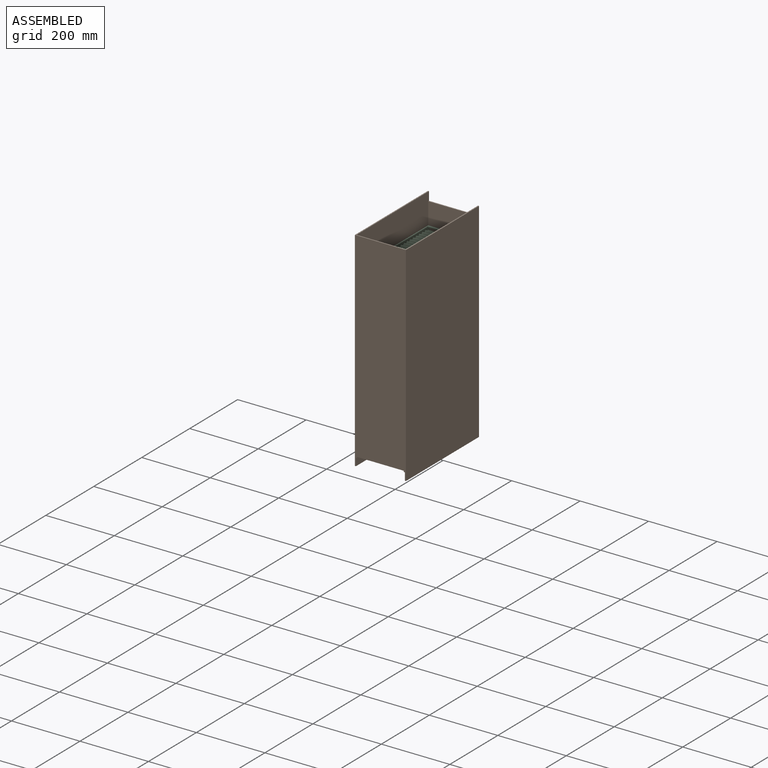
[diagram: assembled view]
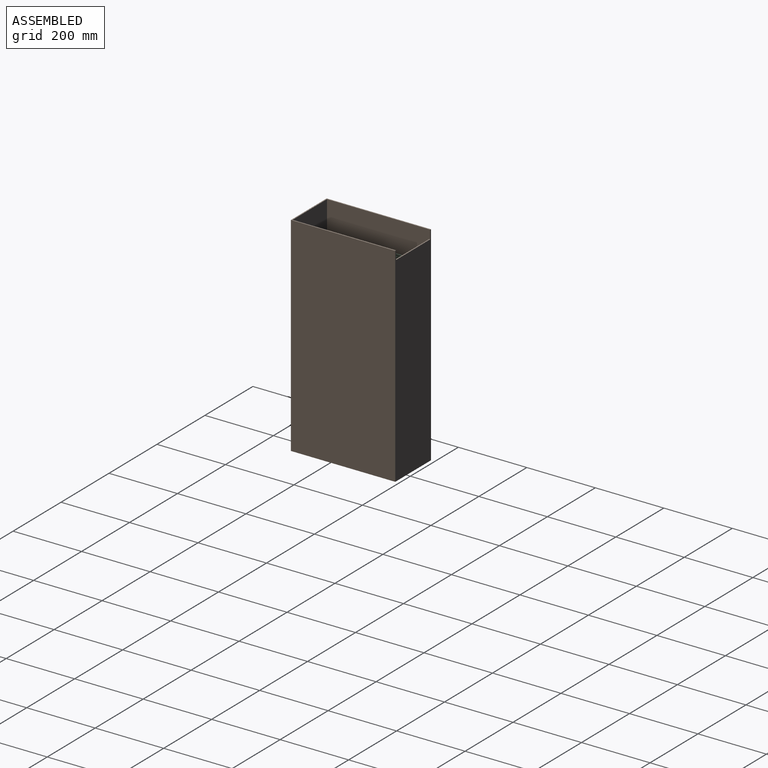
[diagram: assembled view, second angle]
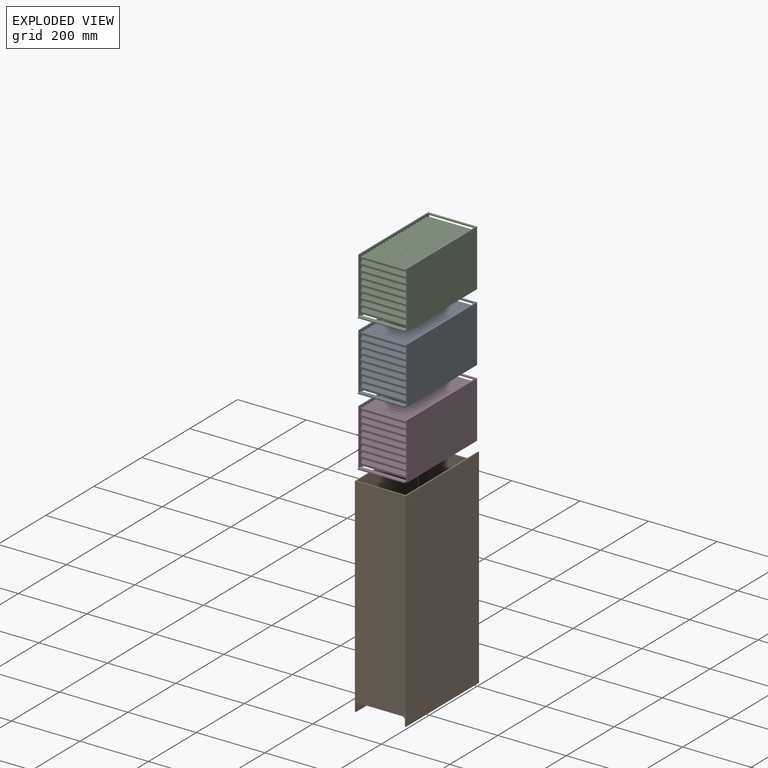
[diagram: exploded view]
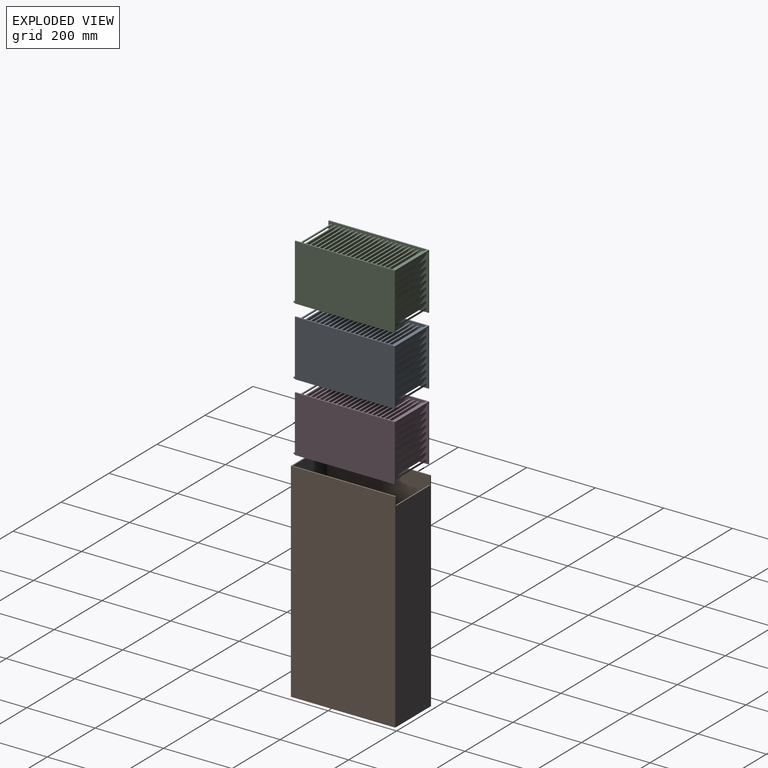
[diagram: exploded view, second angle]
ASSEMBLY  parts=4 mates=3
PART A: 140 faces, bbox 142.9x298.5x165.1 mm
  f0: plane 292.1x165.1mm, normal (-1,0,0), area 35190.1mm2, adj f2,f3,f4,f5,f6,f7,f8,f9
  f1: plane 292.1x165.1mm, normal (1,0,0), area 35190.1mm2, adj f2,f3,f4,f5,f6,f7,f8,f9
  f2: plane 136.53x5.54mm, normal (0,-1,0), area 755.7mm2, adj f0,f1,f3,f5
  f3: plane 136.53x0.31mm, normal (0,-0.82,-0.57), area 50.9mm2, adj f0,f1,f2,f4
  f4: plane 136.53x3.88mm, normal (0,0,-1), area 529.2mm2, adj f0,f1,f3,f5
  f5: plane 136.53x5.84mm, normal (0,0.82,0.57), area 973.5mm2, adj f0,f1,f2,f4
  f6: plane 136.53x18.44mm, normal (0,-0.82,-0.57), area 3073.8mm2, adj f0,f1,f7,f9
  f7: plane 136.53x3.88mm, normal (0,0,-1), area 529.2mm2, adj f0,f1,f6,f8
  f8: plane 136.53x23.98mm, normal (0,0.82,0.57), area 3996.4mm2, adj f0,f1,f7,f9
  f9: plane 136.53x5.54mm, normal (0,-1,0), area 755.7mm2, adj f0,f1,f6,f8
  f10: plane 136.53x36.58mm, normal (0,-0.82,-0.57), area 6096.7mm2, adj f0,f1,f11,f13
  f11: plane 136.53x3.88mm, normal (0,0,-1), area 529.2mm2, adj f0,f1,f10,f12
  f12: plane 136.53x42.12mm, normal (0,0.82,0.57), area 7019.3mm2, adj f0,f1,f11,f13
  f13: plane 136.53x5.54mm, normal (0,-1,0), area 755.7mm2, adj f0,f1,f10,f12
  f14: plane 136.53x54.72mm, normal (0,-0.82,-0.57), area 9119.6mm2, adj f0,f1,f15,f17
  f15: plane 136.53x3.88mm, normal (0,0,-1), area 529.2mm2, adj f0,f1,f14,f16
  f16: plane 136.53x60.25mm, normal (0,0.82,0.57), area 10042.2mm2, adj f0,f1,f15,f17
  f17: plane 136.53x5.54mm, normal (0,-1,0), area 755.7mm2, adj f0,f1,f14,f16
  f18: plane 136.53x72.86mm, normal (0,-0.82,-0.57), area 12142.6mm2, adj f0,f1,f19,f21
  f19: plane 136.53x3.88mm, normal (0,0,-1), area 529.2mm2, adj f0,f1,f18,f20
  f20: plane 136.53x78.39mm, normal (0,0.82,0.57), area 13065.1mm2, adj f0,f1,f19,f21
  f21: plane 136.53x5.54mm, normal (0,-1,0), area 755.7mm2, adj f0,f1,f18,f20
  f22: plane 136.53x90.99mm, normal (0,-0.82,-0.57), area 15165.5mm2, adj f0,f1,f23,f25
  f23: plane 136.53x3.88mm, normal (0,0,-1), area 529.2mm2, adj f0,f1,f22,f24
  f24: plane 136.53x96.53mm, normal (0,0.82,0.57), area 16088mm2, adj f0,f1,f23,f25
  f25: plane 136.53x5.54mm, normal (0,-1,0), area 755.7mm2, adj f0,f1,f22,f24
  f26: plane 136.53x109.13mm, normal (0,-0.82,-0.57), area 18188.4mm2, adj f0,f1,f27,f29
  f27: plane 136.53x3.88mm, normal (0,0,-1), area 529.2mm2, adj f0,f1,f26,f28
  f28: plane 136.53x114.67mm, normal (0,0.82,0.57), area 19110.9mm2, adj f0,f1,f27,f29
  f29: plane 136.53x5.54mm, normal (0,-1,0), area 755.7mm2, adj f0,f1,f26,f28
  f30: plane 136.53x127.27mm, normal (0,-0.82,-0.57), area 21211.3mm2, adj f0,f1,f31,f33
  f31: plane 136.53x3.88mm, normal (0,0,-1), area 529.2mm2, adj f0,f1,f30,f32
  f32: plane 136.53x132.8mm, normal (0,0.82,0.57), area 22133.8mm2, adj f0,f1,f31,f33
  f33: plane 136.53x5.54mm, normal (0,-1,0), area 755.7mm2, adj f0,f1,f30,f32
  f34: plane 145.41x136.53mm, normal (0,-0.82,-0.57), area 24234.2mm2, adj f0,f1,f35,f37
  f35: plane 136.53x3.88mm, normal (0,0,-1), area 529.2mm2, adj f0,f1,f34,f36
  f36: plane 150.94x136.53mm, normal (0,0.82,0.57), area 25156.7mm2, adj f0,f1,f35,f37
  f37: plane 136.53x5.54mm, normal (0,-1,0), area 755.7mm2, adj f0,f1,f34,f36
  f38: plane 152.4x136.53mm, normal (0,0.82,0.57), area 25399.9mm2, adj f0,f1,f39,f41
  f39: plane 136.53x3.88mm, normal (0,0,1), area 529.2mm2, adj f0,f1,f38,f40
  f40: plane 152.4x136.53mm, normal (0,-0.82,-0.57), area 25399.9mm2, adj f0,f1,f39,f41
  f41: plane 136.53x3.88mm, normal (0,0,-1), area 529.2mm2, adj f0,f1,f38,f40
  f42: plane 152.4x136.53mm, normal (0,0.82,0.57), area 25399.9mm2, adj f0,f1,f43,f45
  f43: plane 136.53x3.88mm, normal (0,0,1), area 529.2mm2, adj f0,f1,f42,f44
  f44: plane 152.4x136.53mm, normal (0,-0.82,-0.57), area 25399.9mm2, adj f0,f1,f43,f45
  f45: plane 136.53x3.88mm, normal (0,0,-1), area 529.2mm2, adj f0,f1,f42,f44
  f46: plane 152.4x136.53mm, normal (0,0.82,0.57), area 25399.9mm2, adj f0,f1,f47,f49
  f47: plane 136.53x3.88mm, normal (0,0,1), area 529.2mm2, adj f0,f1,f46,f48
  f48: plane 152.4x136.53mm, normal (0,-0.82,-0.57), area 25399.9mm2, adj f0,f1,f47,f49
  f49: plane 136.53x3.88mm, normal (0,0,-1), area 529.2mm2, adj f0,f1,f46,f48
  f50: plane 152.4x136.53mm, normal (0,0.82,0.57), area 25399.9mm2, adj f0,f1,f51,f53
  f51: plane 136.53x3.88mm, normal (0,0,1), area 529.2mm2, adj f0,f1,f50,f52
  f52: plane 152.4x136.53mm, normal (0,-0.82,-0.57), area 25399.9mm2, adj f0,f1,f51,f53
  f53: plane 136.53x3.88mm, normal (0,0,-1), area 529.2mm2, adj f0,f1,f50,f52
  f54: plane 152.4x136.53mm, normal (0,0.82,0.57), area 25399.9mm2, adj f0,f1,f55,f57
  f55: plane 136.53x3.88mm, normal (0,0,1), area 529.2mm2, adj f0,f1,f54,f56
  f56: plane 152.4x136.53mm, normal (0,-0.82,-0.57), area 25399.9mm2, adj f0,f1,f55,f57
  f57: plane 136.53x3.88mm, normal (0,0,-1), area 529.2mm2, adj f0,f1,f54,f56
  f58: plane 152.4x136.53mm, normal (0,0.82,0.57), area 25399.9mm2, adj f0,f1,f59,f61
  f59: plane 136.53x3.88mm, normal (0,0,1), area 529.2mm2, adj f0,f1,f58,f60
  f60: plane 152.4x136.53mm, normal (0,-0.82,-0.57), area 25399.9mm2, adj f0,f1,f59,f61
  f61: plane 136.53x3.88mm, normal (0,0,-1), area 529.2mm2, adj f0,f1,f58,f60
  f62: plane 152.4x136.53mm, normal (0,0.82,0.57), area 25399.9mm2, adj f0,f1,f63,f65
  f63: plane 136.53x3.88mm, normal (0,0,1), area 529.2mm2, adj f0,f1,f62,f64
  f64: plane 152.4x136.53mm, normal (0,-0.82,-0.57), area 25399.9mm2, adj f0,f1,f63,f65
  f65: plane 136.53x3.88mm, normal (0,0,-1), area 529.2mm2, adj f0,f1,f62,f64
  f66: plane 152.4x136.53mm, normal (0,0.82,0.57), area 25399.9mm2, adj f0,f1,f67,f69
  f67: plane 136.53x3.88mm, normal (0,0,1), area 529.2mm2, adj f0,f1,f66,f68
  f68: plane 152.4x136.53mm, normal (0,-0.82,-0.57), area 25399.9mm2, adj f0,f1,f67,f69
  f69: plane 136.53x3.88mm, normal (0,0,-1), area 529.2mm2, adj f0,f1,f66,f68
  f70: plane 152.4x136.53mm, normal (0,0.82,0.57), area 25399.9mm2, adj f0,f1,f71,f73
  f71: plane 136.53x3.88mm, normal (0,0,1), area 529.2mm2, adj f0,f1,f70,f72
  f72: plane 152.4x136.53mm, normal (0,-0.82,-0.57), area 25399.9mm2, adj f0,f1,f71,f73
  f73: plane 136.53x3.88mm, normal (0,0,-1), area 529.2mm2, adj f0,f1,f70,f72
  f74: plane 152.4x136.53mm, normal (0,0.82,0.57), area 25399.9mm2, adj f0,f1,f75,f77
  f75: plane 136.53x3.88mm, normal (0,0,1), area 529.2mm2, adj f0,f1,f74,f76
  f76: plane 152.4x136.53mm, normal (0,-0.82,-0.57), area 25399.9mm2, adj f0,f1,f75,f77
  f77: plane 136.53x3.88mm, normal (0,0,-1), area 529.2mm2, adj f0,f1,f74,f76
  f78: plane 152.4x136.53mm, normal (0,0.82,0.57), area 25399.9mm2, adj f0,f1,f79,f81
  f79: plane 136.53x3.88mm, normal (0,0,1), area 529.2mm2, adj f0,f1,f78,f80
  f80: plane 152.4x136.53mm, normal (0,-0.82,-0.57), area 25399.9mm2, adj f0,f1,f79,f81
  f81: plane 136.53x3.88mm, normal (0,0,-1), area 529.2mm2, adj f0,f1,f78,f80
  f82: plane 152.4x136.53mm, normal (0,0.82,0.57), area 25399.9mm2, adj f0,f1,f83,f85
  f83: plane 136.53x3.88mm, normal (0,0,1), area 529.2mm2, adj f0,f1,f82,f84
  f84: plane 152.4x136.53mm, normal (0,-0.82,-0.57), area 25399.9mm2, adj f0,f1,f83,f85
  f85: plane 136.53x3.88mm, normal (0,0,-1), area 529.2mm2, adj f0,f1,f82,f84
  f86: plane 152.4x136.53mm, normal (0,0.82,0.57), area 25399.9mm2, adj f0,f1,f87,f89
  f87: plane 136.53x3.88mm, normal (0,0,1), area 529.2mm2, adj f0,f1,f86,f88
  f88: plane 152.4x136.53mm, normal (0,-0.82,-0.57), area 25399.9mm2, adj f0,f1,f87,f89
  f89: plane 136.53x3.88mm, normal (0,0,-1), area 529.2mm2, adj f0,f1,f86,f88
  f90: plane 136.53x3.88mm, normal (0,0,1), area 529.2mm2, adj f0,f1,f91,f93
  f91: plane 152.09x136.53mm, normal (0,-0.82,-0.57), area 25349mm2, adj f0,f1,f90,f92
  f92: plane 136.53x5.54mm, normal (0,1,0), area 755.7mm2, adj f0,f1,f91,f93
  f93: plane 146.56x136.53mm, normal (0,0.82,0.57), area 24426.4mm2, adj f0,f1,f90,f92
  f94: plane 136.53x128.42mm, normal (0,0.82,0.57), area 21403.5mm2, adj f0,f1,f95,f97
  f95: plane 136.53x3.88mm, normal (0,0,1), area 529.2mm2, adj f0,f1,f94,f96
  f96: plane 136.53x133.96mm, normal (0,-0.82,-0.57), area 22326.1mm2, adj f0,f1,f95,f97
  f97: plane 136.53x5.54mm, normal (0,1,0), area 755.7mm2, adj f0,f1,f94,f96
  f98: plane 136.53x110.28mm, normal (0,0.82,0.57), area 18380.6mm2, adj f0,f1,f99,f101
  f99: plane 136.53x3.88mm, normal (0,0,1), area 529.2mm2, adj f0,f1,f98,f100
  f100: plane 136.53x115.82mm, normal (0,-0.82,-0.57), area 19303.2mm2, adj f0,f1,f99,f101
  f101: plane 136.53x5.54mm, normal (0,1,0), area 755.7mm2, adj f0,f1,f98,f100
  f102: plane 136.53x92.15mm, normal (0,0.82,0.57), area 15357.7mm2, adj f0,f1,f103,f105
  f103: plane 136.53x3.88mm, normal (0,0,1), area 529.2mm2, adj f0,f1,f102,f104
  f104: plane 136.53x97.68mm, normal (0,-0.82,-0.57), area 16280.3mm2, adj f0,f1,f103,f105
  f105: plane 136.53x5.54mm, normal (0,1,0), area 755.7mm2, adj f0,f1,f102,f104
  f106: plane 136.53x74.01mm, normal (0,0.82,0.57), area 12334.8mm2, adj f0,f1,f107,f109
  f107: plane 136.53x3.88mm, normal (0,0,1), area 529.2mm2, adj f0,f1,f106,f108
  f108: plane 136.53x79.54mm, normal (0,-0.82,-0.57), area 13257.4mm2, adj f0,f1,f107,f109
  f109: plane 136.53x5.54mm, normal (0,1,0), area 755.7mm2, adj f0,f1,f106,f108
  f110: plane 136.53x55.87mm, normal (0,0.82,0.57), area 9311.9mm2, adj f0,f1,f111,f113
  f111: plane 136.53x3.88mm, normal (0,0,1), area 529.2mm2, adj f0,f1,f110,f112
  f112: plane 136.53x61.41mm, normal (0,-0.82,-0.57), area 10234.5mm2, adj f0,f1,f111,f113
  f113: plane 136.53x5.54mm, normal (0,1,0), area 755.7mm2, adj f0,f1,f110,f112
  f114: plane 136.53x37.73mm, normal (0,0.82,0.57), area 6289mm2, adj f0,f1,f115,f117
  f115: plane 136.53x3.88mm, normal (0,0,1), area 529.2mm2, adj f0,f1,f114,f116
  f116: plane 136.53x43.27mm, normal (0,-0.82,-0.57), area 7211.6mm2, adj f0,f1,f115,f117
  f117: plane 136.53x5.54mm, normal (0,1,0), area 755.7mm2, adj f0,f1,f114,f116
  f118: plane 136.53x19.6mm, normal (0,0.82,0.57), area 3266.1mm2, adj f0,f1,f119,f121
  f119: plane 136.53x3.88mm, normal (0,0,1), area 529.2mm2, adj f0,f1,f118,f120
  f120: plane 136.53x25.13mm, normal (0,-0.82,-0.57), area 4188.7mm2, adj f0,f1,f119,f121
  f121: plane 136.53x5.54mm, normal (0,1,0), area 755.7mm2, adj f0,f1,f118,f120
  f122: plane 136.53x1.46mm, normal (0,0.82,0.57), area 243.2mm2, adj f0,f1,f123,f125
  f123: plane 136.53x3.88mm, normal (0,0,1), area 529.2mm2, adj f0,f1,f122,f124
  f124: plane 136.53x6.99mm, normal (0,-0.82,-0.57), area 1165.8mm2, adj f0,f1,f123,f125
  f125: plane 136.53x5.54mm, normal (0,1,0), area 755.7mm2, adj f0,f1,f122,f124
  f126: plane 292.1x142.88mm, normal (0,0,1), area 2721.8mm2, adj f0,f1,f127,f129,f130,f131,f132,f139
  f127: plane 165.1x142.88mm, normal (0,-1,0), area 1481.9mm2, adj f0,f1,f126,f128,f130,f132,f138
  f128: plane 298.45x142.88mm, normal (0,0,-1), area 3588.7mm2, adj f0,f1,f127,f129,f130,f131,f132,f133
  f129: plane 165.1x3.18mm, normal (0,1,0), area 524.2mm2, adj f0,f126,f128,f130,f134
  f130: plane 292.1x165.1mm, normal (1,0,0), area 48225.7mm2, adj f126,f127,f128,f129
  f131: plane 165.1x3.18mm, normal (0,1,0), area 524.2mm2, adj f1,f126,f128,f132,f133
  f132: plane 292.1x165.1mm, normal (-1,0,0), area 48225.7mm2, adj f126,f127,f128,f131
  f133: plane 6.35x3.18mm, normal (-1,0,0), area 20.2mm2, adj f128,f131,f135,f137
  f134: plane 6.35x3.18mm, normal (1,0,0), area 20.2mm2, adj f128,f129,f135,f137
  f135: plane 136.53x12.7mm, normal (0,0,1), area 1733.9mm2, adj f0,f1,f133,f134,f136,f137
  f136: plane 136.53x3.18mm, normal (0,-1,0), area 433.5mm2, adj f0,f1,f128,f135
  f137: plane 136.53x3.18mm, normal (0,1,0), area 433.5mm2, adj f128,f133,f134,f135
  f138: plane 136.53x6.35mm, normal (0,0,-1), area 866.9mm2, adj f0,f1,f127,f139
  f139: plane 136.53x3.18mm, normal (0,1,0), area 433.5mm2, adj f0,f1,f126,f138
PART B: 20 faces, bbox 149.2x304.8x609.6 mm
  f0: plane 584.2x301.63mm, normal (-1,0,0), area 174435.1mm2, adj f1,f5,f6,f7,f10,f17
  f1: plane 584.2x142.88mm, normal (0,-1,0), area 83447.4mm2, adj f0,f2,f3,f6,f9,f13,f14,f15
  f2: plane 584.2x301.63mm, normal (1,0,0), area 174435.1mm2, adj f1,f5,f6,f7,f10,f14
  f3: plane 301.63x22.23mm, normal (1,0,0), area 6703.6mm2, adj f1,f8,f9,f15
  f4: plane 136.53x3.18mm, normal (0,0,-1), area 433.5mm2, adj f5,f8,f16,f19
  f5: plane 584.2x142.88mm, normal (0,1,0), area 83467.6mm2, adj f0,f2,f4,f7,f14,f17
  f6: plane 142.88x3.18mm, normal (0,0,1), area 453.6mm2, adj f0,f1,f2,f10
  f7: plane 304.8x149.23mm, normal (0,0,1), area 2389.1mm2, adj f0,f2,f5,f8,f10,f11,f12
  f8: plane 609.6x149.23mm, normal (0,-1,0), area 87358.7mm2, adj f3,f4,f7,f9,f11,f12,f13,f15
  f9: plane 304.8x149.23mm, normal (0,0,-1), area 2389.1mm2, adj f1,f3,f8,f10,f11,f12,f13
  f10: plane 609.6x149.23mm, normal (0,1,0), area 87338.5mm2, adj f0,f2,f6,f7,f9,f11,f12
  f11: plane 609.6x304.8mm, normal (-1,0,0), area 185806.1mm2, adj f7,f8,f9,f10
  f12: plane 609.6x304.8mm, normal (1,0,0), area 185806.1mm2, adj f7,f8,f9,f10
  f13: plane 301.63x22.23mm, normal (-1,0,0), area 6703.6mm2, adj f1,f8,f9,f18
  f14: plane 298.45x3.18mm, normal (0,0,1), area 947.6mm2, adj f1,f2,f5,f16
  f15: plane 301.63x3.18mm, normal (0,0,-1), area 957.7mm2, adj f1,f3,f8,f16
  f16: plane 301.63x3.18mm, normal (1,0,0), area 957.7mm2, adj f1,f4,f8,f14,f15
  f17: plane 298.45x3.18mm, normal (0,0,1), area 947.6mm2, adj f0,f1,f5,f19
  f18: plane 301.63x3.18mm, normal (0,0,-1), area 957.7mm2, adj f1,f8,f13,f19
  f19: plane 301.63x3.18mm, normal (-1,0,0), area 957.7mm2, adj f1,f4,f8,f17,f18
PART C: same geometry as A
PART D: same geometry as A
PLACE A rot(axis=(0,0,-1),180deg) t=(-1.11,-138.71,225.72)mm
PLACE B t=(-143.98,-152.5,257.55)mm fixed
PLACE C rot(axis=(0,0,-1),180deg) t=(-1.11,-138.71,390.82)mm
PLACE D rot(axis=(0,0,1),180deg) t=(-1.11,-138.71,60.62)mm
MATE fastened D.f126 <-> A.f128  axis (0,0,1) through (-140.81,-3.27,143.25)mm
MATE fastened D.f128 <-> B.f14  axis (0,0,1) through (-140.81,-3.27,-21.85)mm
MATE fastened A.f126 <-> C.f128  axis (0,0,1) through (-140.81,-3.27,308.35)mm
